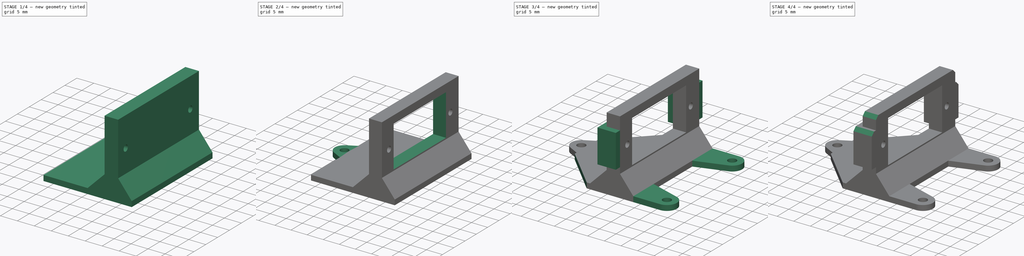
[diagram: build sequence overview — one tinted view per stage of 4, left to right]
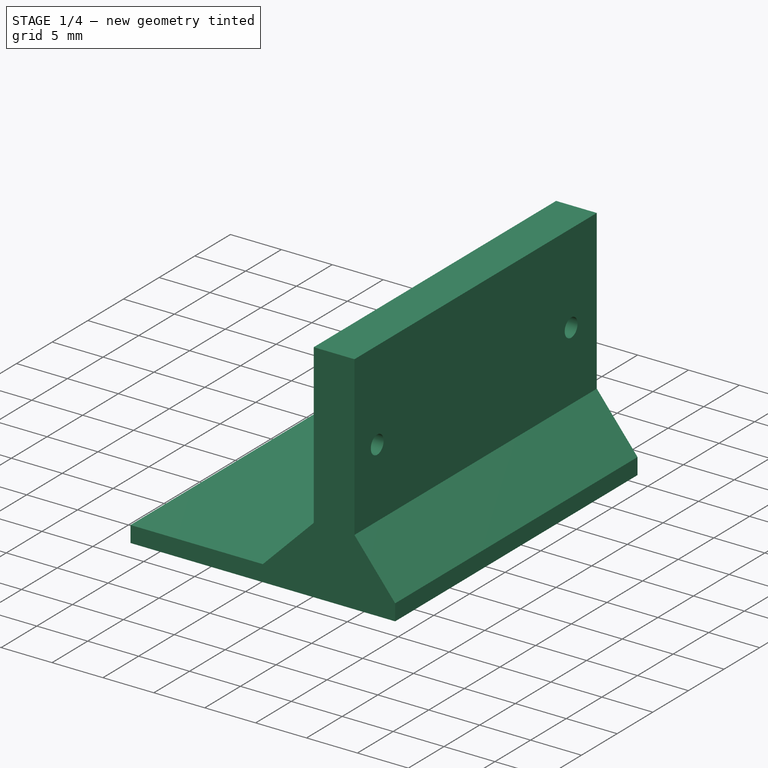
[diagram: stage 1 of 4 — iso view after this stage's code; geometry added in this stage tinted green]
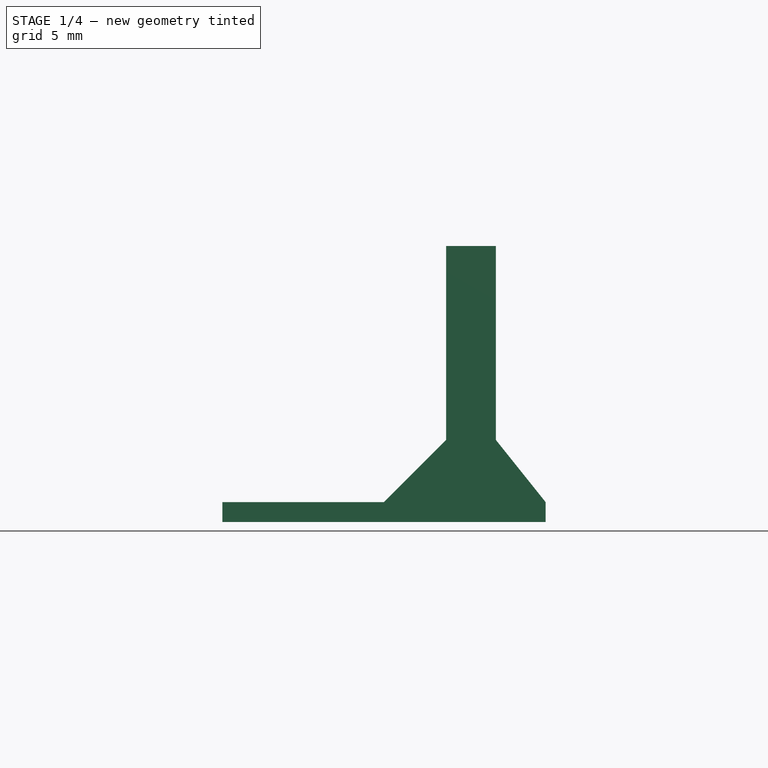
[diagram: stage 1 of 4 — front view after this stage's code; geometry added in this stage tinted green]
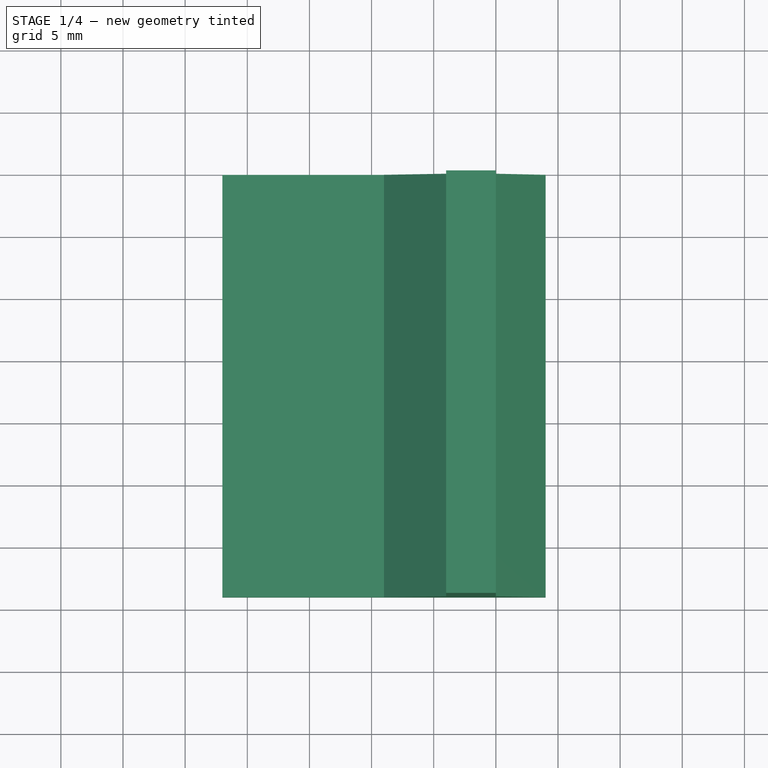
[diagram: stage 1 of 4 — top view after this stage's code; geometry added in this stage tinted green]
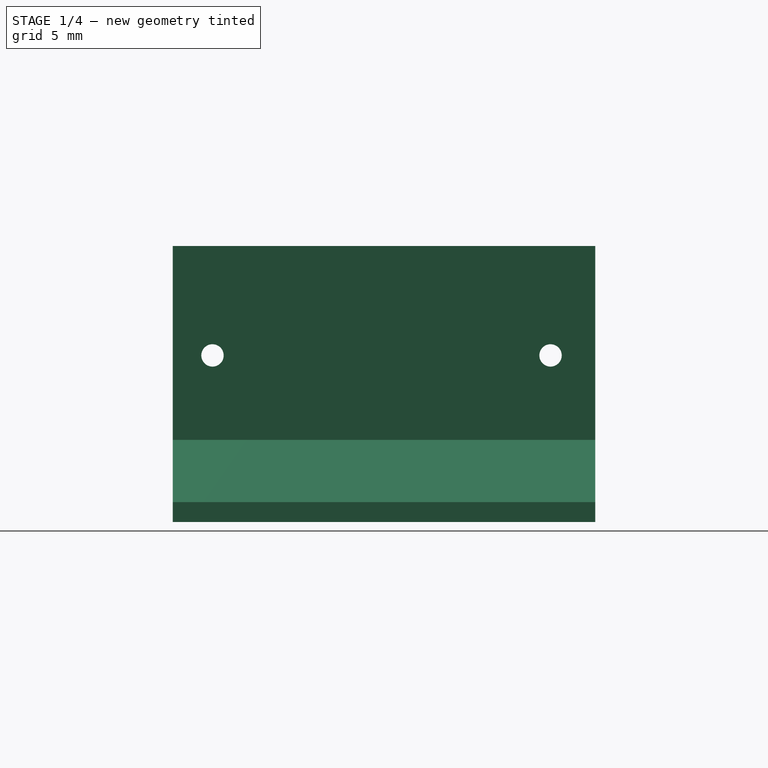
[diagram: stage 1 of 4 — right view after this stage's code; geometry added in this stage tinted green]
FCSTD DOCUMENT  (FreeCAD 0.20R29603 (Git))
Label: SG90_Holder
License: All rights reserved
LicenseURL: http://en.wikipedia.org/wiki/All_rights_reserved
objects: Sketcher::SketchObject×6, PartDesign::Pad×4, PartDesign::Chamfer×3, PartDesign::Pocket×2, PartDesign::Plane×1, PartDesign::Body×1
note: 26 computed .brp shape members not serialized (recipe doc carries the construction recipe); baked Part::Feature solids carry a one-line shape summary decoded from their .brp

FEATURE [Sketcher::SketchObject] Sketch001
  FullyConstrained = false
  MapMode = 5
  Placement = pos=(0,0,0) rot=(1,0,0;1.5708rad)
  Support = -> [XZ_Plane]
  sketch-geometry (10):
    g0: LineSegment StartX=-22 StartY=1.6 StartZ=0 EndX=-9 EndY=1.6 EndZ=0
    g1: LineSegment StartX=-4 StartY=22.2 StartZ=0 EndX=0 EndY=22.2 EndZ=0
    g2: LineSegment StartX=-3.60176 StartY=0 StartZ=0 EndX=-22 EndY=0 EndZ=0
    g3: LineSegment StartX=-22 StartY=0 StartZ=0 EndX=-22 EndY=1.6 EndZ=0
    g4: LineSegment StartX=-4 StartY=22.2 StartZ=0 EndX=-4 EndY=6.6 EndZ=0
    g5: LineSegment StartX=-4 StartY=6.6 StartZ=0 EndX=-9 EndY=1.6 EndZ=0
    g6: LineSegment StartX=0 StartY=22.2 StartZ=0 EndX=0 EndY=6.6 EndZ=0
    g7: LineSegment StartX=0 StartY=6.6 StartZ=0 EndX=4 EndY=1.6 EndZ=0
    g8: LineSegment StartX=4 StartY=1.6 StartZ=0 EndX=4 EndY=0 EndZ=0
    g9: LineSegment StartX=4 StartY=0 StartZ=0 EndX=-3.60176 EndY=0 EndZ=0
  constraints (29):
    c: Horizontal(g0)
    c: PointOnObject(g2,g-1)
    c: Coincident(g2,g3)
    c: Coincident(g3,g0)
    c: Vertical(g3)
    c: Horizontal(g1)
    c: DistanceY(g-1,g1) = 22.2
    c: DistanceX(g2,g-1) = 22
    c: DistanceY(g2,g0) = 1.6
    c: DistanceX(g1,g1) = 4
    c: Coincident(g4,g1)
    c: Vertical(g4)
    c: Coincident(g5,g4)
    c: Coincident(g5,g0)
    c: Angle(g-1,g5) = 0.785398
    c: DistanceY(g0,g4) = 5
    c: Coincident(g6,g1)
    c: Vertical(g6)
    c: Coincident(g7,g6)
    c: Coincident(g8,g7)
    c: PointOnObject(g8,g-1)
    c: Vertical(g8)
    c: Coincident(g9,g8)
    c: Coincident(g9,g2)
    c: Horizontal(g9)
    c: DistanceX(g6,g-1) = 0
    c: Horizontal(g4,g6)
    c: DistanceX(g-1,g8) = 4
    c: Horizontal(g7,g0)
FEATURE [PartDesign::Pad] Pad  label="Bracket"
  Direction = (0,-1,-2e-16)
  Length = 34
  Length2 = 10
  Placement = pos=(0,0,0) rot=(1,0,0;1.5708rad)
  Profile = -> Sketch001
  ReferenceAxis = -> Sketch001 [N_Axis]
  Type = 0
FEATURE [Sketcher::SketchObject] Sketch
  FullyConstrained = false
  MapMode = 5
  Placement = pos=(0,0,0) rot=(0.707107,0,0.707107;3.14159rad)
  sketch-geometry (3):
    g0: Circle CenterX=13.4 CenterY=30.8 CenterZ=0 NormalX=0 NormalY=0 NormalZ=1 AngleXU=0 Radius=0.9
    g1: LineSegment StartX=24.4105 StartY=17.2 StartZ=0 EndX=-11.039 EndY=17.2 EndZ=0
    g2: Circle CenterX=13.4 CenterY=3.6 CenterZ=0 NormalX=0 NormalY=0 NormalZ=1 AngleXU=0 Radius=0.9
  constraints (7):
    c: Horizontal(g1)
    c: DistanceY(g-1,g1) = 17.2
    c: Diameter(g0) = 1.8
    c: Equal(g0,g2)
    c: Symmetric(g2,g0,g1)
    c: DistanceX(g-1,g0) = 13.4
    c: DistanceY(g2,g0) = 27.2
FEATURE [PartDesign::Pocket] Pocket  label="ScrewHoles"
  BaseFeature = -> Pad
  Direction = (-1,0,2e-16)
  Length = 5
  Length2 = 5
  Placement = pos=(0,0,0) rot=(1,0,0;1.5708rad)
  Profile = -> Sketch
  ReferenceAxis = -> Sketch [N_Axis]
  Type = 1
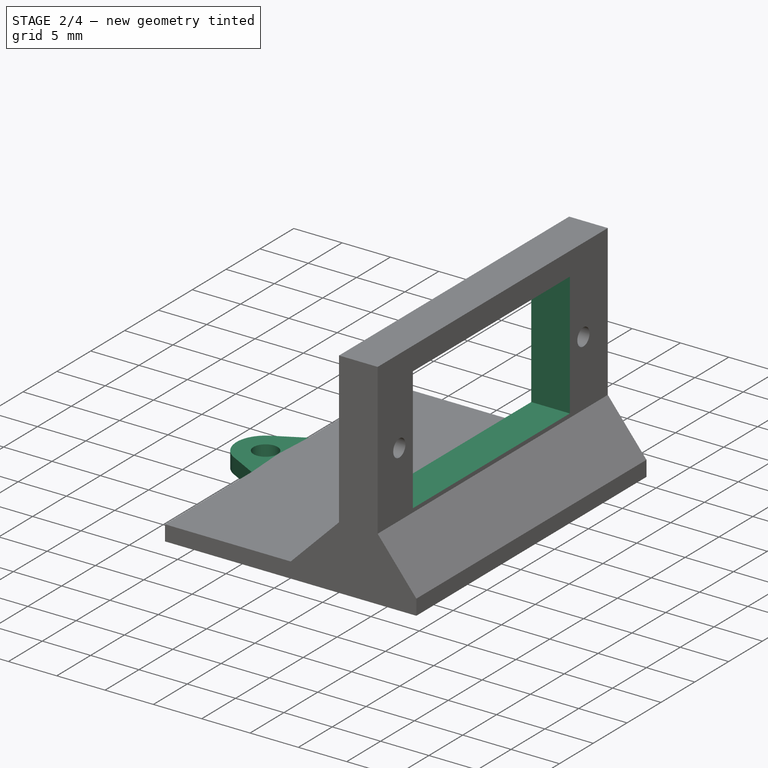
[diagram: stage 2 of 4 — iso view after this stage's code; geometry added in this stage tinted green]
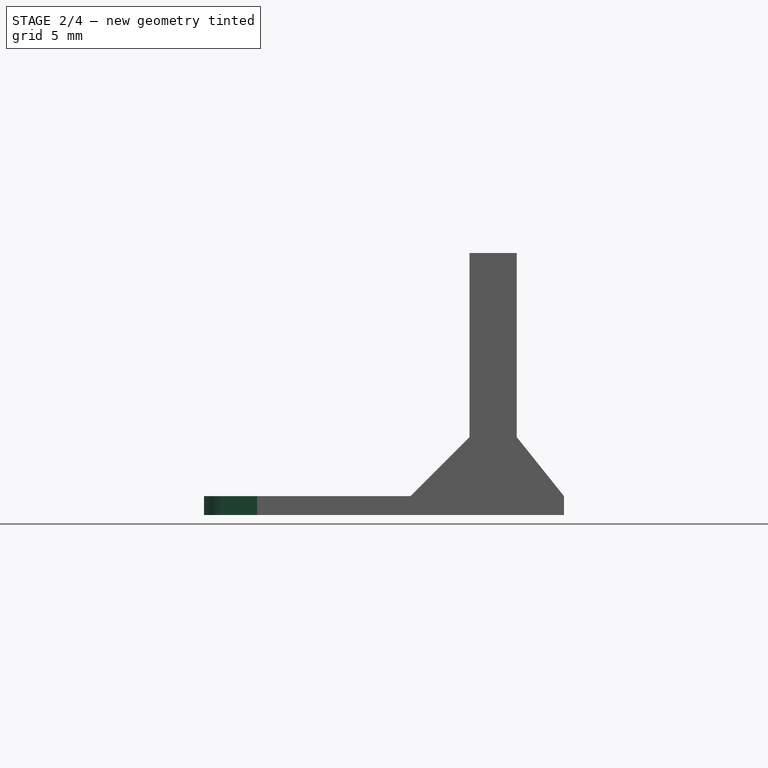
[diagram: stage 2 of 4 — front view after this stage's code; geometry added in this stage tinted green]
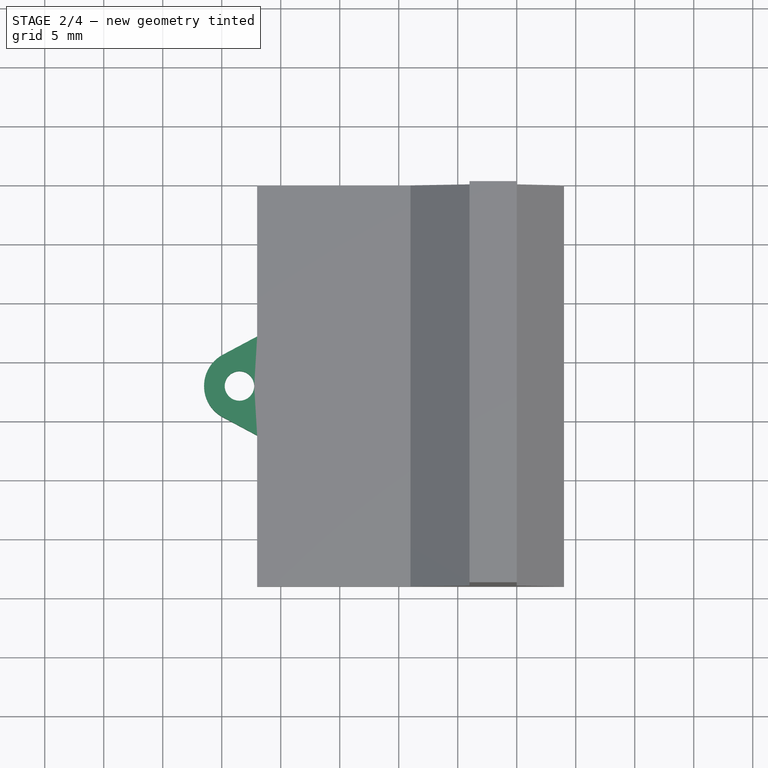
[diagram: stage 2 of 4 — top view after this stage's code; geometry added in this stage tinted green]
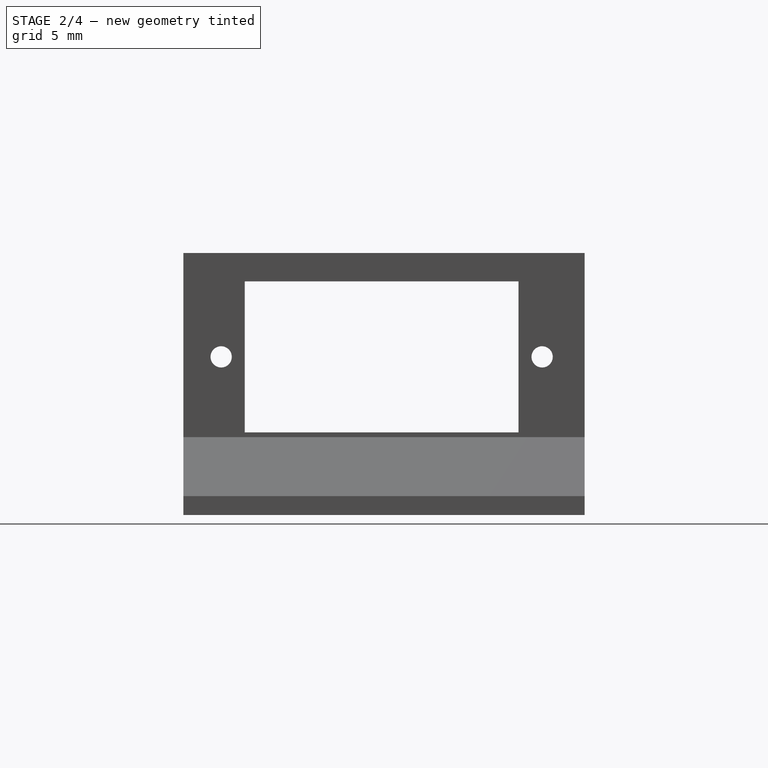
[diagram: stage 2 of 4 — right view after this stage's code; geometry added in this stage tinted green]
FEATURE [PartDesign::Plane] DatumPlane001  label="PlaneMotorGap"
  Length = 61.0272
  MapMode = 5
  Placement = pos=(0,0,0) rot=(0.707107,0,0.707107;3.14159rad)
  ResizeMode = 0
  Support = -> [Pocket]
  Width = 71.8272
FEATURE [Sketcher::SketchObject] Sketch003
  FullyConstrained = true
  MapMode = 5
  Placement = pos=(0,0,0) rot=(0.707107,0,0.707107;3.14159rad)
  Support = -> [DatumPlane001]
  sketch-geometry (4):
    g0: LineSegment StartX=7 StartY=28.8 StartZ=0 EndX=19.8 EndY=28.8 EndZ=0
    g1: LineSegment StartX=19.8 StartY=28.8 StartZ=0 EndX=19.8 EndY=5.6 EndZ=0
    g2: LineSegment StartX=19.8 StartY=5.6 StartZ=0 EndX=7 EndY=5.6 EndZ=0
    g3: LineSegment StartX=7 StartY=5.6 StartZ=0 EndX=7 EndY=28.8 EndZ=0
  constraints (12):
    c: Coincident(g0,g1)
    c: Coincident(g1,g2)
    c: Coincident(g2,g3)
    c: Coincident(g3,g0)
    c: Horizontal(g0)
    c: Horizontal(g2)
    c: Vertical(g1)
    c: Vertical(g3)
    c: DistanceY(g1,g0) = 23.2
    c: DistanceX(g0,g0) = 12.8
    c: DistanceX(g-1,g2) = 7
    c: DistanceY(g-1,g2) = 5.6
FEATURE [PartDesign::Pocket] Pocket001  label="MotorGap"
  BaseFeature = -> Pocket
  Direction = (-1,0,2e-16)
  Length = 5
  Length2 = 5
  Placement = pos=(0,0,0) rot=(1,0,0;1.5708rad)
  Profile = -> Sketch003
  ReferenceAxis = -> Sketch003 [N_Axis]
  Type = 1
FEATURE [Sketcher::SketchObject] Sketch005
  FullyConstrained = true
  MapMode = 5
  Support = -> [XY_Plane]
  sketch-geometry (5):
    g0: ArcOfCircle CenterX=-23.5 CenterY=-17 CenterZ=0 NormalX=0 NormalY=0 NormalZ=1 AngleXU=0 Radius=3 StartAngle=2.06075 EndAngle=4.22243
    g1: LineSegment StartX=-20.5 StartY=-12 StartZ=0 EndX=-20.5 EndY=-22 EndZ=0
    g2: LineSegment StartX=-20.5 StartY=-12 StartZ=0 EndX=-24.9118 EndY=-14.3529 EndZ=0
    g3: LineSegment StartX=-20.5 StartY=-22 StartZ=0 EndX=-24.9118 EndY=-19.6471 EndZ=0
    g4: Circle CenterX=-23.5 CenterY=-17 CenterZ=0 NormalX=0 NormalY=0 NormalZ=1 AngleXU=0 Radius=1.25
  constraints (13):
    c: Diameter(g0) = 6
    c: DistanceX(g0,g-1) = 23.5
    c: DistanceY(g0,g-1) = 17
    c: Vertical(g1)
    c: DistanceY(g1,g1) = 10
    c: DistanceY(g1,g-1) = 12
    c: DistanceX(g1,g-1) = 20.5
    c: Coincident(g2,g1)
    c: Coincident(g3,g1)
    c: Tangent(g0,g2) = -1.5708
    c: Tangent(g0,g3) = 1.5708
    c: Coincident(g4,g0)
    c: Diameter(g4) = 2.5
FEATURE [PartDesign::Pad] Pad001  label="BackScrewHole"
  BaseFeature = -> Pocket001
  Direction = (0,0,1)
  Length = 1.6
  Length2 = 10
  Placement = pos=(0,0,0) rot=(1,0,0;1.5708rad)
  Profile = -> Sketch005
  ReferenceAxis = -> Sketch005 [N_Axis]
  Type = 0
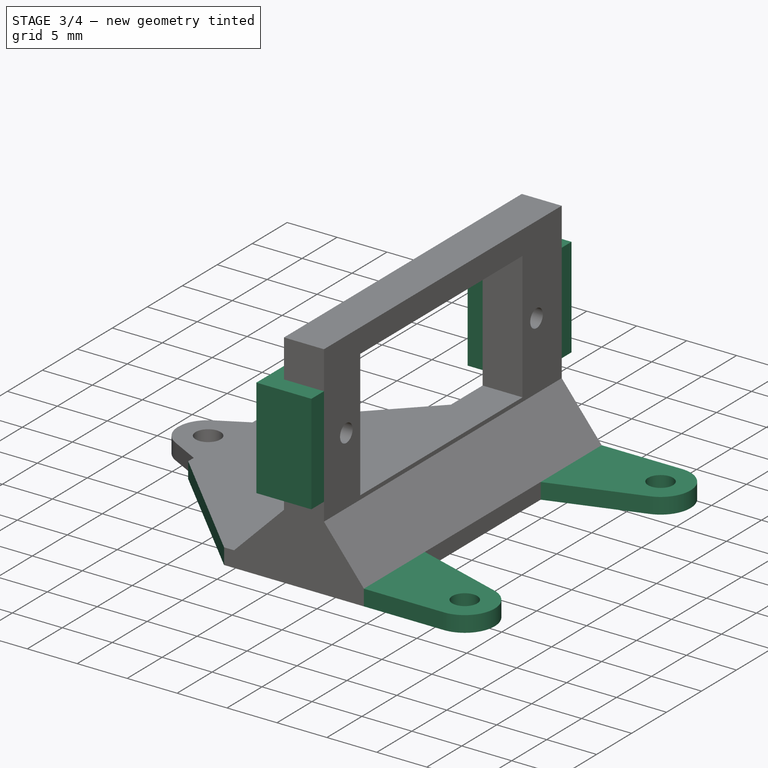
[diagram: stage 3 of 4 — iso view after this stage's code; geometry added in this stage tinted green]
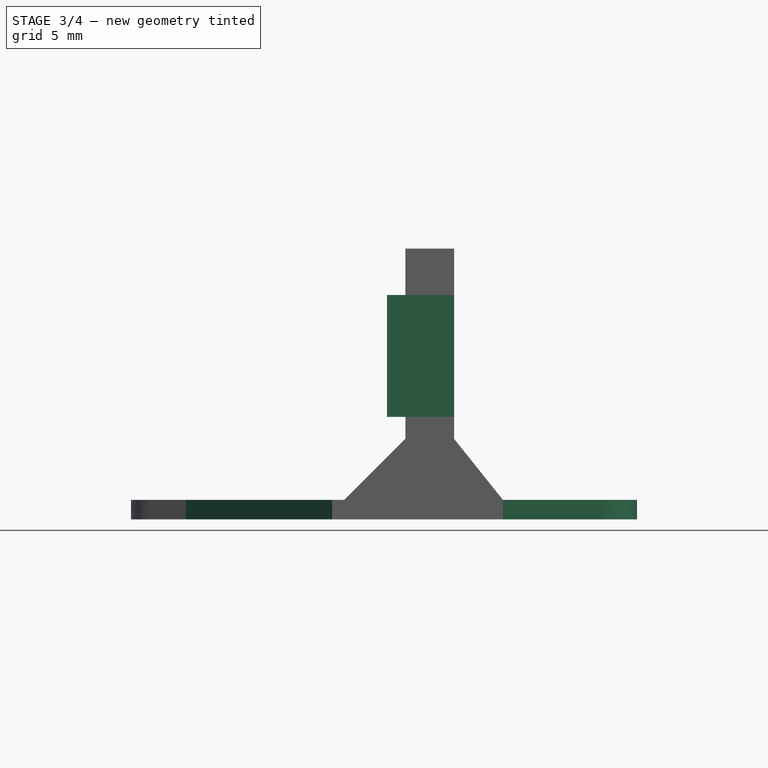
[diagram: stage 3 of 4 — front view after this stage's code; geometry added in this stage tinted green]
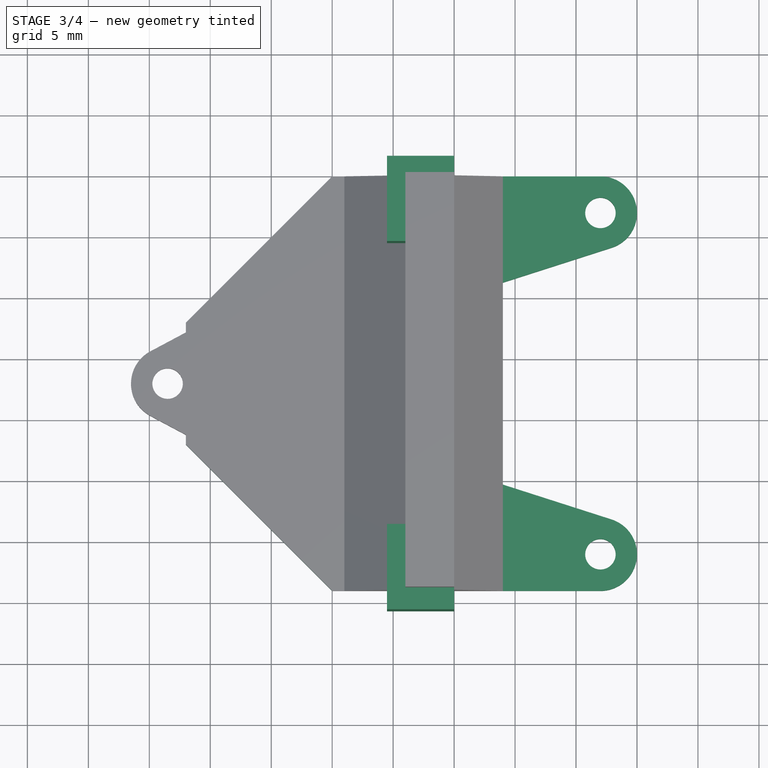
[diagram: stage 3 of 4 — top view after this stage's code; geometry added in this stage tinted green]
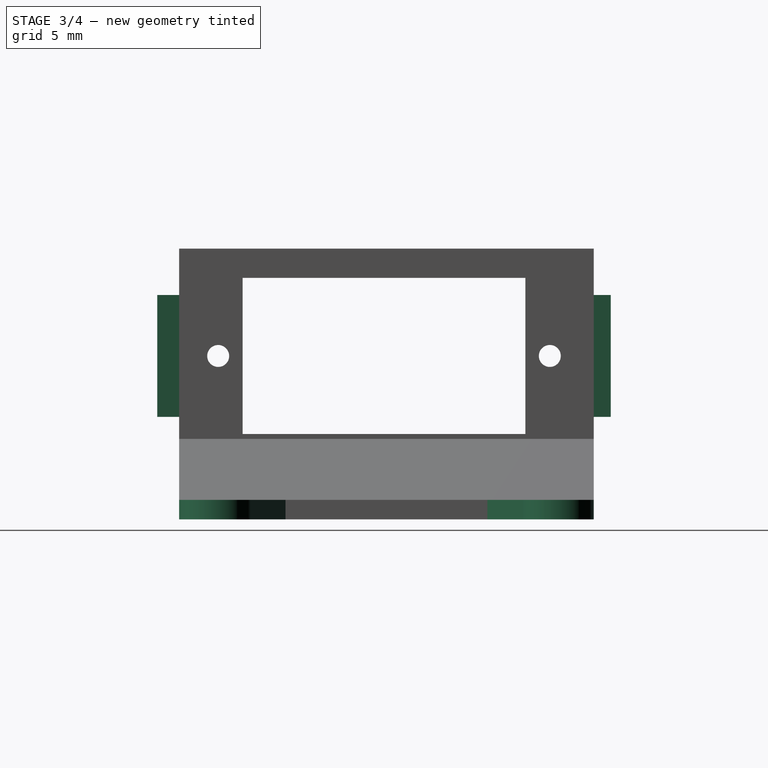
[diagram: stage 3 of 4 — right view after this stage's code; geometry added in this stage tinted green]
FEATURE [Sketcher::SketchObject] Sketch006
  FullyConstrained = true
  MapMode = 5
  Support = -> [XY_Plane]
  sketch-geometry (10):
    g0: ArcOfCircle CenterX=12 CenterY=-31 CenterZ=0 NormalX=0 NormalY=0 NormalZ=1 AngleXU=0 Radius=3 StartAngle=4.71239 EndAngle=7.54357
    g1: ArcOfCircle CenterX=12 CenterY=-3 CenterZ=0 NormalX=0 NormalY=0 NormalZ=1 AngleXU=0 Radius=3 StartAngle=5.0228 EndAngle=7.85397
    g2: LineSegment StartX=0 StartY=-8.50724e-11 StartZ=0 EndX=12 EndY=-8.50724e-11 EndZ=0
    g3: LineSegment StartX=0 StartY=-34 StartZ=0 EndX=12 EndY=-34 EndZ=0
    g4: LineSegment StartX=0 StartY=-34 StartZ=0 EndX=0 EndY=-24 EndZ=0
    g5: LineSegment StartX=0 StartY=-24 StartZ=0 EndX=12.9164 EndY=-28.1434 EndZ=0
    g6: LineSegment StartX=0 StartY=-8.50724e-11 StartZ=0 EndX=0 EndY=-10 EndZ=0
    g7: LineSegment StartX=0 StartY=-10 StartZ=0 EndX=12.9164 EndY=-5.85662 EndZ=0
    g8: Circle CenterX=12 CenterY=-3 CenterZ=0 NormalX=0 NormalY=0 NormalZ=1 AngleXU=0 Radius=1.25
    g9: Circle CenterX=12 CenterY=-31 CenterZ=0 NormalX=0 NormalY=0 NormalZ=1 AngleXU=0 Radius=1.25
  constraints (26):
    c: Diameter(g0) = 6
    c: Equal(g1,g0)
    c: Vertical(g1,g0)
    c: DistanceX(g-1,g0) = 12
    c: DistanceY(g0,g-1) = 31
    c: DistanceY(g1,g-1) = 3
    c: Horizontal(g2)
    c: PointOnObject(g3,g-2)
    c: Horizontal(g3)
    c: Coincident(g4,g3)
    c: Coincident(g4,g5)
    c: Vertical(g4)
    c: DistanceY(g4,g4) = 10
    c: Coincident(g6,g2)
    c: Coincident(g7,g6)
    c: Vertical(g6)
    c: Coincident(g2,g-1)
    c: DistanceY(g6,g6) = 10
    c: Coincident(g8,g1)
    c: Coincident(g9,g0)
    c: Diameter(g9) = 2.5
    c: Equal(g8,g9)
    c: Coincident(g1,g2)
    c: Tangent(g1,g7) = -1.5708
    c: Tangent(g0,g5) = 1.5708
    c: Tangent(g0,g3) = -1.5708
FEATURE [PartDesign::Pad] Pad002  label="FrontScrewsHoles"
  BaseFeature = -> Pad001
  Direction = (0,0,1)
  Length = 1.6
  Length2 = 10
  Placement = pos=(0,0,0) rot=(1,0,0;1.5708rad)
  Profile = -> Sketch006
  ReferenceAxis = -> Sketch006 [N_Axis]
  Type = 0
FEATURE [Sketcher::SketchObject] Sketch007
  ExternalGeometry = -> [Pad002]
  FullyConstrained = false
  MapMode = 5
  Placement = pos=(0,0,0) rot=(0.707107,0,0.707107;3.14159rad)
  Support = -> [Pad002]
  sketch-geometry (11):
    g0: LineSegment StartX=18.4 StartY=35.8 StartZ=0 EndX=8.4 EndY=35.8 EndZ=0
    g1: LineSegment StartX=8.4 StartY=35.8 StartZ=0 EndX=8.4 EndY=28.8 EndZ=0
    g2: LineSegment StartX=8.4 StartY=28.8 StartZ=0 EndX=18.4 EndY=28.8 EndZ=0
    g3: LineSegment StartX=18.4 StartY=28.8 StartZ=0 EndX=18.4 EndY=35.8 EndZ=0
    g4: LineSegment StartX=18.4 StartY=5.6 StartZ=0 EndX=8.4 EndY=5.6 EndZ=0
    g5: LineSegment StartX=8.4 StartY=5.6 StartZ=0 EndX=8.4 EndY=-1.4 EndZ=0
    g6: LineSegment StartX=8.4 StartY=-1.4 StartZ=0 EndX=18.4 EndY=-1.4 EndZ=0
    g7: LineSegment StartX=18.4 StartY=-1.4 StartZ=0 EndX=18.4 EndY=5.6 EndZ=0
    g8: LineSegment StartX=13.4 StartY=44.8059 StartZ=0 EndX=13.4 EndY=-6.46832 EndZ=0
    g9: Circle CenterX=13.4 CenterY=30.8 CenterZ=0 NormalX=0 NormalY=0 NormalZ=1 AngleXU=0 Radius=0.9
    g10: Circle CenterX=13.4 CenterY=3.6 CenterZ=0 NormalX=0 NormalY=0 NormalZ=1 AngleXU=0 Radius=0.9
  constraints (28):
    c: Coincident(g0,g1)
    c: Coincident(g1,g2)
    c: Coincident(g2,g3)
    c: Coincident(g3,g0)
    c: Horizontal(g0)
    c: Horizontal(g2)
    c: Vertical(g1)
    c: Vertical(g3)
    c: PointOnObject(g2,g-4)
    c: DistanceY(g-3,g0) = 5
    c: DistanceX(g0,g0) = 10
    c: Coincident(g4,g5)
    c: Coincident(g5,g6)
    c: Coincident(g6,g7)
    c: Coincident(g7,g4)
    c: Horizontal(g4)
    c: Vertical(g5)
    c: Vertical(g7)
    c: PointOnObject(g4,g-6)
    c: DistanceY(g6,g-5) = 5
    c: PointOnObject(g-5,g8)
    c: Symmetric(g6,g5,g8)
    c: Symmetric(g0,g0,g8)
    c: Coincident(g9,g-3)
    c: Coincident(g10,g-5)
    c: Equal(g10,g-5)
    c: Equal(g9,g-3)
    c: Equal(g6,g0)
FEATURE [PartDesign::Pad] Pad003  label="ScrewHolesEmboss"
  BaseFeature = -> Pad002
  Direction = (1,0,-2e-16)
  Length = 5.5
  Length2 = 10
  Placement = pos=(0,0,0) rot=(1,0,0;1.5708rad)
  Profile = -> Sketch007
  ReferenceAxis = -> Sketch007 [N_Axis]
  Reversed = true
  Type = 0
FEATURE [PartDesign::Chamfer] Chamfer
  Angle = 45
  Base = -> Pad003 [Edge84,Edge97]
  BaseFeature = -> Pad003
  ChamferType = 0
  FlipDirection = false
  Placement = pos=(0,0,0) rot=(1,0,0;1.5708rad)
  Size = 12
  Size2 = 1
  SupportTransform = false
  UseAllEdges = false
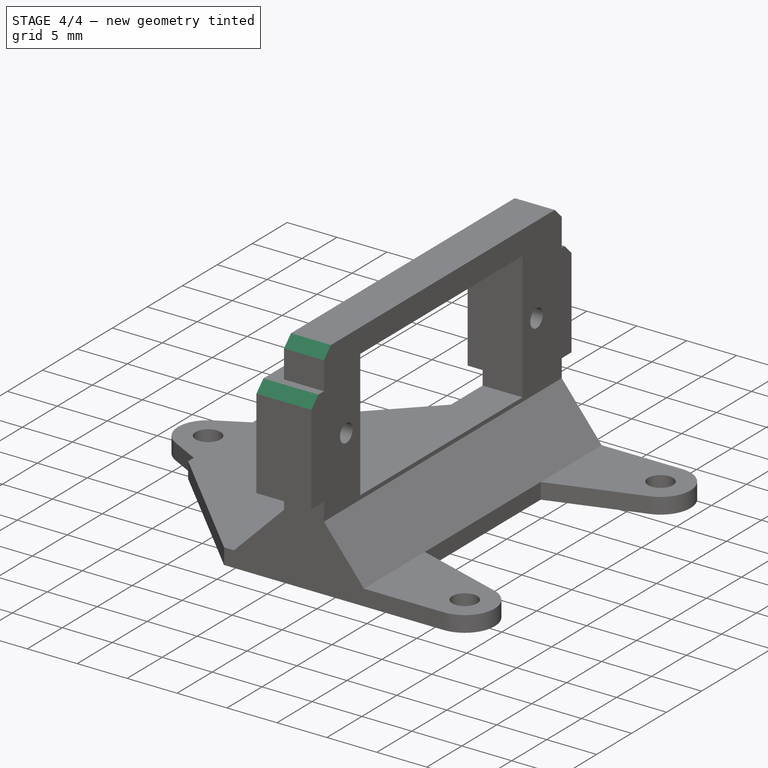
[diagram: stage 4 of 4 — iso view after this stage's code; geometry added in this stage tinted green]
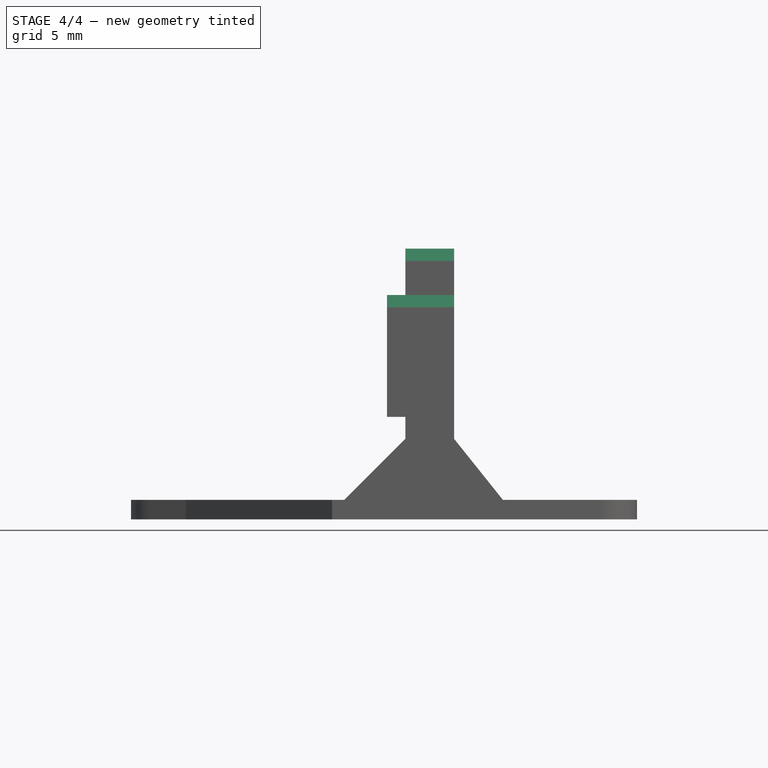
[diagram: stage 4 of 4 — front view after this stage's code; geometry added in this stage tinted green]
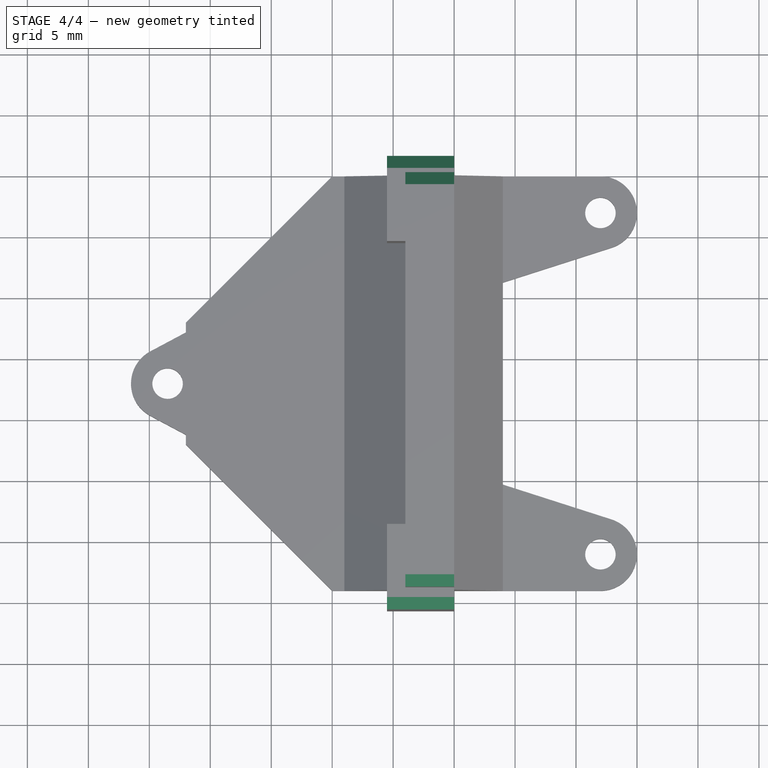
[diagram: stage 4 of 4 — top view after this stage's code; geometry added in this stage tinted green]
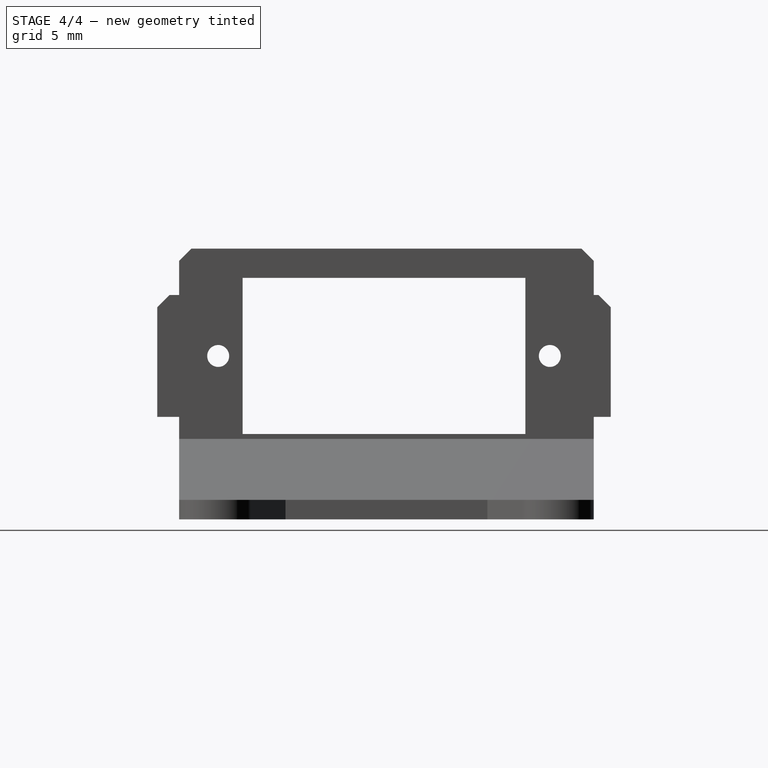
[diagram: stage 4 of 4 — right view after this stage's code; geometry added in this stage tinted green]
FEATURE [PartDesign::Chamfer] Chamfer001
  Angle = 45
  Base = -> Chamfer [Edge167,Edge171]
  BaseFeature = -> Chamfer
  ChamferType = 0
  FlipDirection = false
  Placement = pos=(0,0,0) rot=(1,0,0;1.5708rad)
  Size = 1
  Size2 = 1
  SupportTransform = false
  UseAllEdges = false
FEATURE [PartDesign::Chamfer] Chamfer002
  Angle = 45
  Base = -> Chamfer001 [Edge42,Edge56]
  BaseFeature = -> Chamfer001
  ChamferType = 0
  FlipDirection = false
  Placement = pos=(0,0,0) rot=(1,0,0;1.5708rad)
  Size = 1
  Size2 = 1
  SupportTransform = false
  UseAllEdges = false
FEATURE [PartDesign::Body] Body
  Group = -> [Sketch001,Pad,Sketch,Pocket,DatumPlane001,Sketch003,Pocket001,Sketch005,Pad001,Sketch006,Pad002,Sketch007,Pad003,Chamfer,Chamfer001,Chamfer002]
  Origin = -> Origin
  Tip = -> Chamfer002
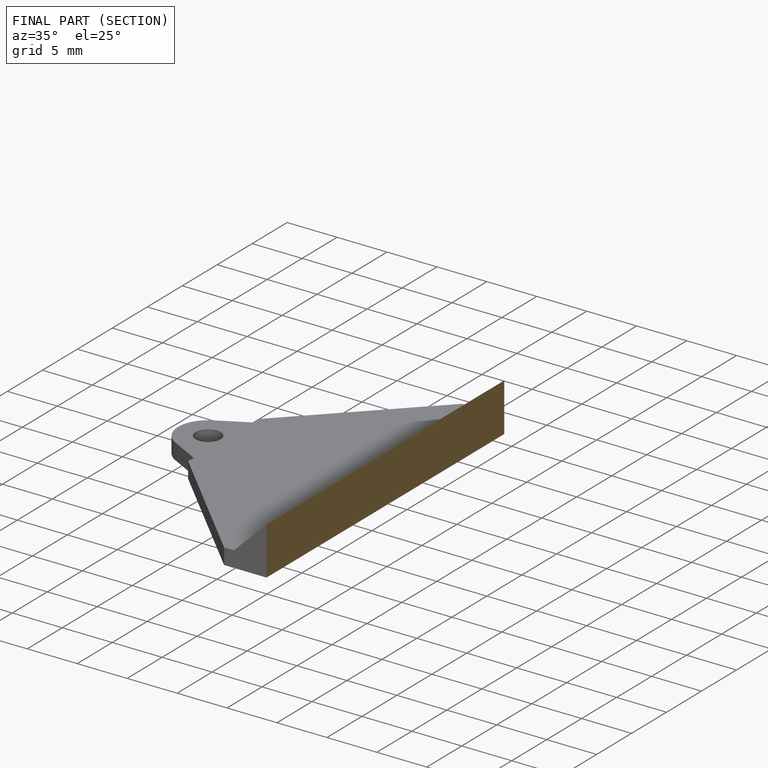
[diagram: finished part — half-section view (interior)]
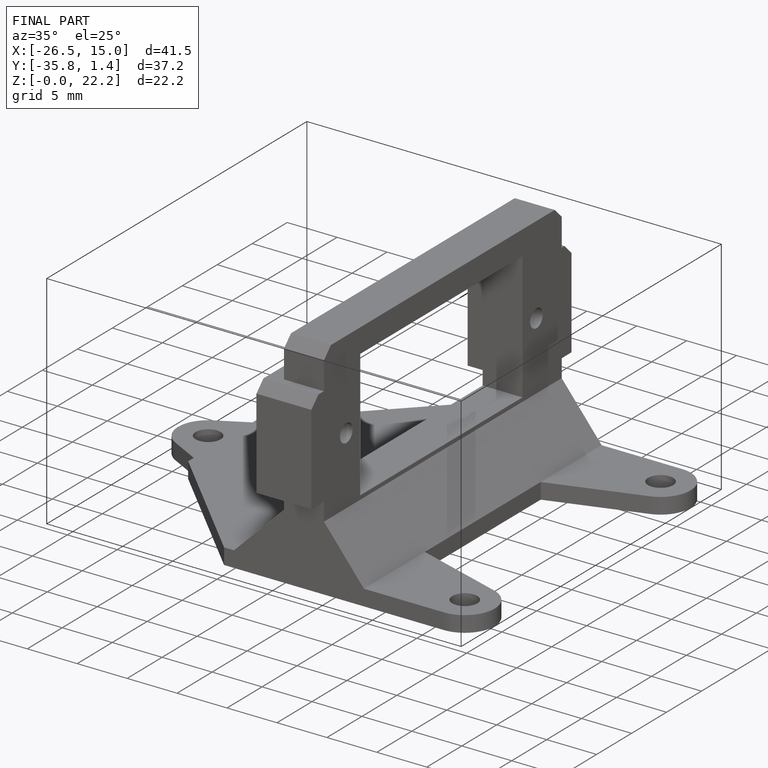
[diagram: finished part — iso view with bounding-box wireframe]
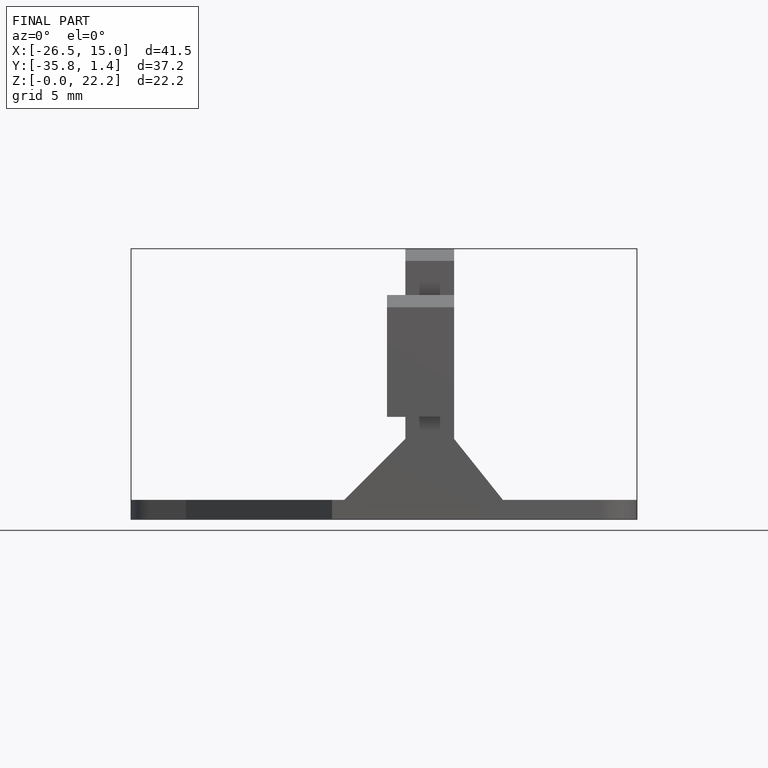
[diagram: finished part — front view with bounding-box wireframe]
